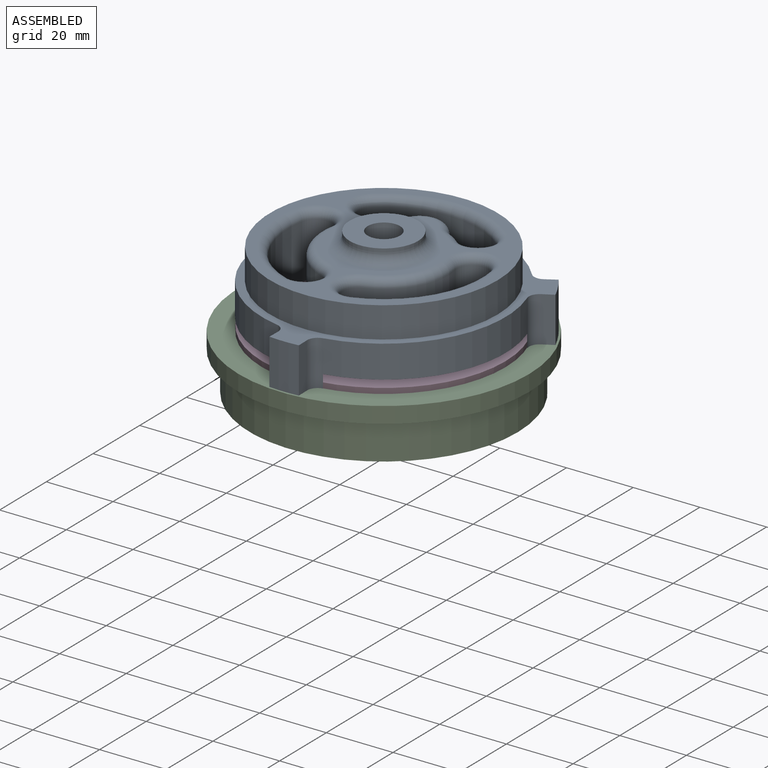
[diagram: assembled view]
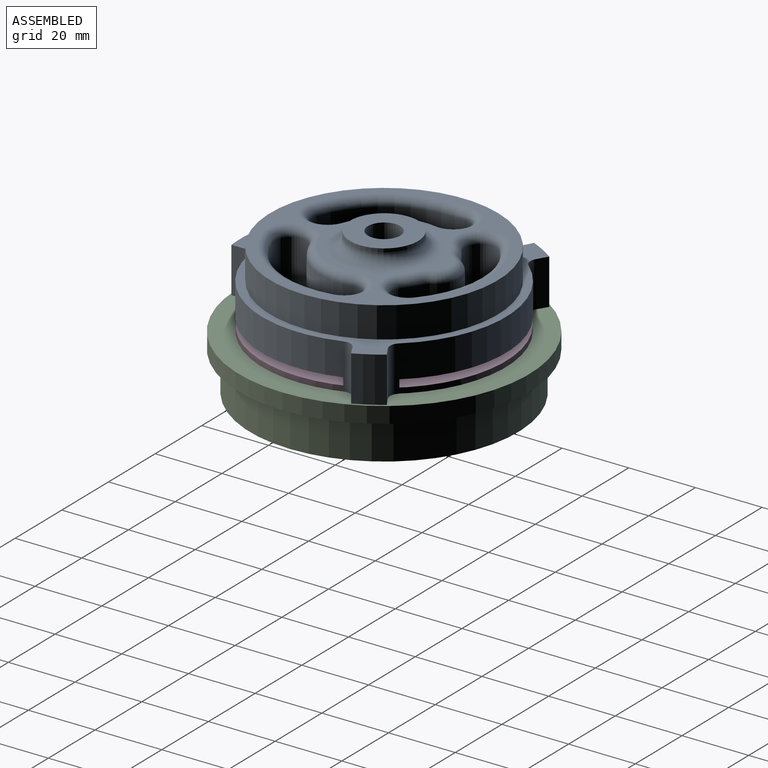
[diagram: assembled view, second angle]
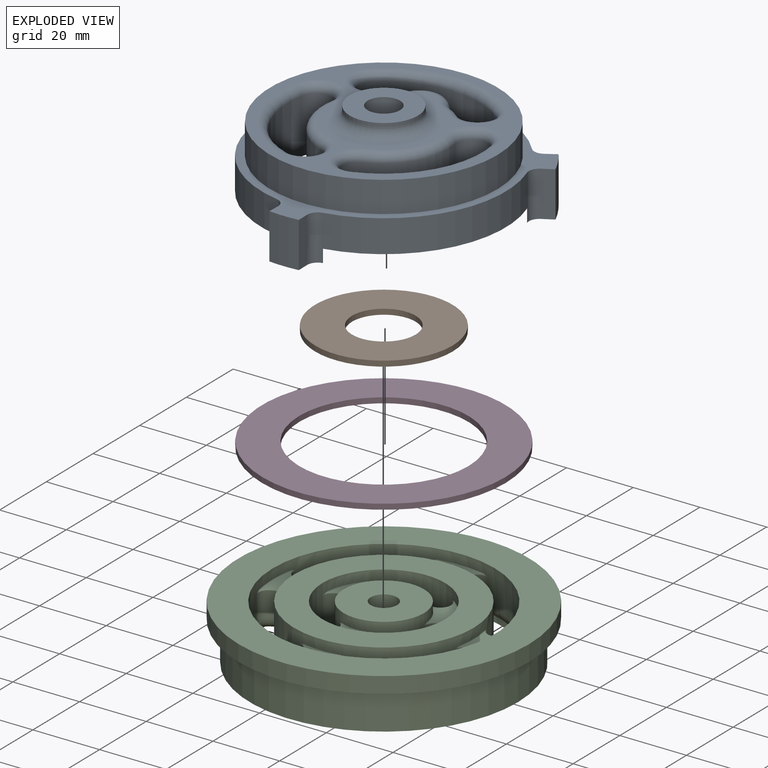
[diagram: exploded view]
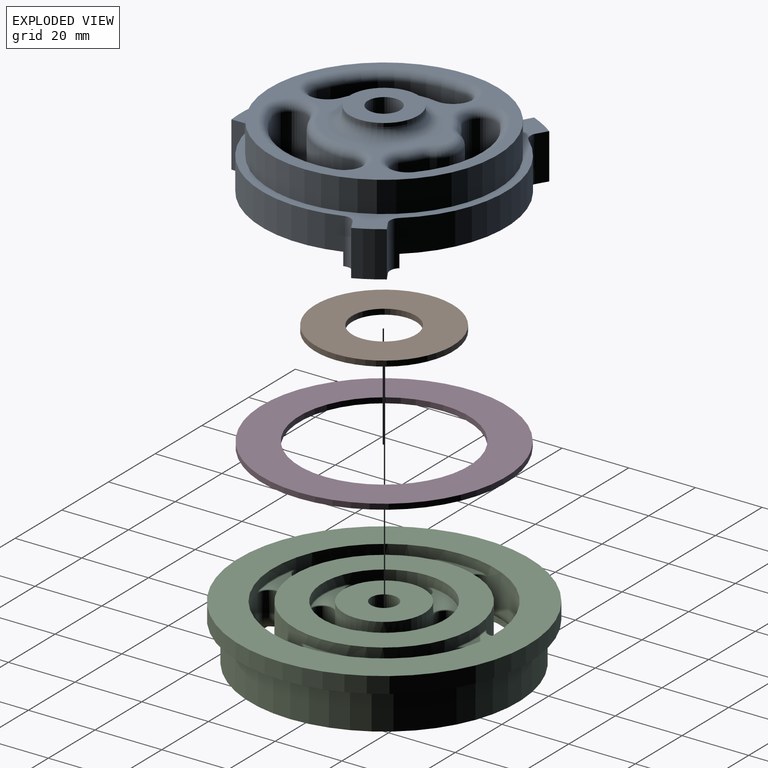
[diagram: exploded view, second angle]
ASSEMBLY  parts=4 mates=3
PART A: 76 faces, bbox 78.4x79.5x28.3 mm
  f0: plane 68.26x68.26mm, normal (0,0,-1), area 1143.3mm2, adj f6,f33,f60,f61,f62,f63,f64,f65
  f1: plane 73.18x73.18mm, normal (0,0,1), area 2478.1mm2, adj f2,f3,f8,f9,f12,f19,f26,f34
  f2: cylinder r=36.59mm len=55.31mm, axis (0,0,1), area 610.1mm2, adj f1,f7,f21,f29
  f3: cylinder r=36.59mm len=47.9mm, axis (0,0,1), area 610.1mm2, adj f1,f7,f14,f22
  f4: plane 20.5x20.5mm, normal (0,0,-1), area 255.9mm2, adj f5,f11
  f5: cylinder r=10.25mm len=20.5mm, axis (0,0,1), area 70.3mm2, adj f4,f33
  f6: cylinder r=34.13mm len=68.26mm, axis (0,0,1), area 1988.2mm2, adj f0,f7
  f7: plane 79.53x78.39mm, normal (0,0,-1), area 721.2mm2, adj f2,f3,f6,f8,f13,f14,f15,f16
  f8: cylinder r=36.59mm len=47.9mm, axis (0,0,1), area 610.1mm2, adj f1,f7,f15,f28
  f9: cylinder r=9.41mm len=18.82mm, axis (0,0,1), area 231.3mm2, adj f1,f10
  f10: plane 18.82x18.82mm, normal (0,0,1), area 204.1mm2, adj f9,f11
  f11: cylinder r=4.86mm len=27.18mm, axis (0,0,-1), area 829.5mm2, adj f4,f10
  f12: cylinder r=36.59mm len=13.83mm, axis (0,0,-1), area 54.1mm2, adj f1,f14,f15,f18
  f13: plane 13.61x3.61mm, normal (-1,-0.02,0), area 49.1mm2, adj f7,f14,f17,f18
  f14: cylinder r=3.17mm len=13.61mm, axis (0,0,-1), area 60.5mm2, adj f3,f7,f12,f13,f18
  f15: cylinder r=3.17mm len=13.61mm, axis (0,0,-1), area 60.5mm2, adj f7,f8,f12,f16,f18
  f16: plane 13.61x3.61mm, normal (1,-0.02,0), area 49.1mm2, adj f7,f15,f17,f18
  f17: cylinder r=42.94mm len=13.61mm, axis (0,0,-1), area 120.2mm2, adj f7,f13,f16,f18
  f18: plane 13.83x7.01mm, normal (0,0,1), area 58.4mm2, adj f12,f13,f14,f15,f16,f17
  f19: cylinder r=36.59mm len=11.98mm, axis (0,0,-1), area 54.1mm2, adj f1,f21,f22,f25
  f20: plane 13.61x3.09mm, normal (0.52,-0.86,0), area 49.1mm2, adj f7,f21,f24,f25
  f21: cylinder r=3.17mm len=13.61mm, axis (0,0,-1), area 60.5mm2, adj f2,f7,f19,f20,f25
  f22: cylinder r=3.17mm len=13.61mm, axis (0,0,-1), area 60.5mm2, adj f3,f7,f19,f23,f25
  f23: plane 13.61x3.16mm, normal (-0.48,0.87,0), area 49.1mm2, adj f7,f22,f24,f25
  f24: cylinder r=42.94mm len=13.61mm, axis (0,0,-1), area 120.2mm2, adj f7,f20,f23,f25
  f25: plane 13.2x11.54mm, normal (0,0,1), area 58.4mm2, adj f19,f20,f21,f22,f23,f24
  f26: cylinder r=36.59mm len=11.98mm, axis (0,0,-1), area 54.1mm2, adj f1,f28,f29,f32
  f27: plane 13.61x3.16mm, normal (0.48,0.87,0), area 49.1mm2, adj f7,f28,f31,f32
  f28: cylinder r=3.17mm len=13.61mm, axis (0,0,-1), area 60.5mm2, adj f7,f8,f26,f27,f32
  f29: cylinder r=3.17mm len=13.61mm, axis (0,0,-1), area 60.5mm2, adj f2,f7,f26,f30,f32
  f30: plane 13.61x3.09mm, normal (-0.52,-0.86,0), area 49.1mm2, adj f7,f29,f31,f32
  f31: cylinder r=42.94mm len=13.61mm, axis (0,0,-1), area 120.2mm2, adj f7,f27,f30,f32
  f32: plane 13.2x11.54mm, normal (0,0,1), area 58.4mm2, adj f26,f27,f28,f29,f30,f31
  f33: torus R=13.42mm, axis (0,0,1), area 357.3mm2, adj f0,f5
  f34: cylinder r=19.05mm len=21.44mm, axis (0,0,-1), area 443.6mm2, adj f1,f35,f36,f69
  f35: cylinder r=4.76mm len=16.46mm, axis (0,0,-1), area 246.3mm2, adj f1,f34,f37,f68
  f36: cylinder r=4.76mm len=16.46mm, axis (0,0,-1), area 246.3mm2, adj f1,f34,f37,f71
  f37: cylinder r=28.57mm len=32.16mm, axis (0,0,-1), area 665.4mm2, adj f1,f35,f36,f70
  f38: cylinder r=19.05mm len=21.44mm, axis (0,0,-1), area 443.6mm2, adj f1,f39,f40,f75
  f39: cylinder r=4.76mm len=16.46mm, axis (0,0,-1), area 246.3mm2, adj f1,f38,f41,f73
  f40: cylinder r=4.76mm len=16.46mm, axis (0,0,-1), area 246.3mm2, adj f1,f38,f41,f74
  f41: cylinder r=28.57mm len=32.16mm, axis (0,0,-1), area 665.4mm2, adj f1,f39,f40,f72
  f42: cylinder r=19.05mm len=16.46mm, axis (0,0,-1), area 79.6mm2, adj f1,f43,f47,f66
  f43: cylinder r=4.76mm len=16.46mm, axis (0,0,-1), area 246.3mm2, adj f1,f42,f44,f64
  f44: cylinder r=28.57mm len=37.14mm, axis (0,0,-1), area 665.4mm2, adj f1,f43,f45,f62
  f45: cylinder r=4.76mm len=16.46mm, axis (0,0,-1), area 246.3mm2, adj f1,f44,f46,f60
  f46: cylinder r=19.05mm len=16.46mm, axis (0,0,-1), area 79.6mm2, adj f1,f45,f48,f61
  f47: cylinder r=4.76mm len=16.46mm, axis (0,0,-1), area 45.7mm2, adj f1,f42,f49,f67
  f48: cylinder r=4.76mm len=16.46mm, axis (0,0,-1), area 45.7mm2, adj f1,f46,f49,f63
  f49: cylinder r=7.36mm len=16.46mm, axis (0,0,-1), area 251.1mm2, adj f1,f47,f48,f65
  f50: cylinder r=4.45mm len=8.89mm, axis (0,0,1), area 133mm2, adj f1,f51
  f51: plane 8.89x8.89mm, normal (0,0,1), area 62.1mm2, adj f50
  f52: cylinder r=4.45mm len=8.89mm, axis (0,0,1), area 133mm2, adj f1,f53
  f53: plane 8.89x8.89mm, normal (0,0,1), area 62.1mm2, adj f52
  f54: cylinder r=4.45mm len=8.89mm, axis (0,0,1), area 133mm2, adj f1,f55
  f55: plane 8.89x8.89mm, normal (0,0,1), area 62.1mm2, adj f54
  f56: cylinder r=4.45mm len=8.89mm, axis (0,0,1), area 133mm2, adj f1,f57
  f57: plane 8.89x8.89mm, normal (0,0,1), area 62.1mm2, adj f56
  f58: cylinder r=4.45mm len=8.89mm, axis (0,0,1), area 133mm2, adj f1,f59
  f59: plane 8.89x8.89mm, normal (0,0,1), area 62.1mm2, adj f58
  f60: torus R=7.3mm, axis (0,0,1), area 71.3mm2, adj f0,f45,f61,f62
  f61: torus R=16.51mm, axis (0,0,1), area 18.4mm2, adj f0,f46,f60,f63
  f62: torus R=31.12mm, axis (0,0,1), area 166.5mm2, adj f0,f44,f60,f64
  f63: torus R=7.3mm, axis (0,0,1), area 13.2mm2, adj f0,f48,f61,f65
  f64: torus R=7.3mm, axis (0,0,1), area 71.3mm2, adj f0,f43,f62,f66
  f65: torus R=4.82mm, axis (0,0,1), area 53.2mm2, adj f0,f49,f63,f67
  f66: torus R=16.51mm, axis (0,0,1), area 18.4mm2, adj f0,f42,f64,f67
  f67: torus R=7.3mm, axis (0,0,1), area 13.2mm2, adj f0,f47,f65,f66
  f68: torus R=7.3mm, axis (0,0,1), area 71.3mm2, adj f0,f35,f69,f70
  f69: torus R=16.51mm, axis (0,0,1), area 102.3mm2, adj f0,f34,f68,f71
  f70: torus R=31.12mm, axis (0,0,1), area 166.5mm2, adj f0,f37,f68,f71
  f71: torus R=7.3mm, axis (0,0,1), area 71.3mm2, adj f0,f36,f69,f70
  f72: torus R=31.12mm, axis (0,0,1), area 166.5mm2, adj f0,f41,f73,f74
  f73: torus R=7.3mm, axis (0,0,1), area 71.3mm2, adj f0,f39,f72,f75
  f74: torus R=7.3mm, axis (0,0,1), area 71.3mm2, adj f0,f40,f72,f75
  f75: torus R=16.51mm, axis (0,0,1), area 102.3mm2, adj f0,f38,f73,f74
PART B: 4 faces, bbox 41.3x41.3x1.6 mm
  f0: cylinder r=9.55mm len=19.1mm, axis (0,0,-1), area 97.5mm2, adj f2,f3
  f1: cylinder r=20.64mm len=41.28mm, axis (0,0,-1), area 210.8mm2, adj f2,f3
  f2: plane 41.28x41.28mm, normal (0,0,1), area 1051.5mm2, adj f0,f1
  f3: plane 41.28x41.28mm, normal (0,0,-1), area 1051.5mm2, adj f0,f1
PART C: 129 faces, bbox 87.1x87.1x16.6 mm
  f0: plane 87.12x87.12mm, normal (0,0,1), area 2472.5mm2, adj f20,f29
  f1: plane 53.95x53.95mm, normal (0,0,1), area 1220.6mm2, adj f26,f28
  f2: cylinder r=3.17mm len=7.55mm, axis (0,0,-1), area 73.4mm2, adj f28,f29,f56,f58,f121
  f3: cylinder r=3.17mm len=7.55mm, axis (0,0,-1), area 73.4mm2, adj f28,f29,f57,f59,f104
  f4: cylinder r=3.17mm len=7.34mm, axis (0,0,-1), area 73.2mm2, adj f26,f27,f52,f89
  f5: cylinder r=3.17mm len=7.34mm, axis (0,0,-1), area 73.2mm2, adj f26,f27,f53,f80
  f6: cylinder r=3.17mm len=7.34mm, axis (0,0,-1), area 73.2mm2, adj f26,f27,f49,f96
  f7: cylinder r=3.17mm len=7.34mm, axis (0,0,-1), area 73.2mm2, adj f26,f27,f48,f81
  f8: cylinder r=3.17mm len=7.55mm, axis (0,0,-1), area 73.4mm2, adj f28,f29,f42,f44,f97
  f9: cylinder r=3.17mm len=7.55mm, axis (0,0,-1), area 73.4mm2, adj f28,f29,f43,f45,f110
  f10: cylinder r=3.17mm len=7.55mm, axis (0,0,-1), area 73.4mm2, adj f28,f29,f67,f68,f118
  f11: cylinder r=3.17mm len=7.55mm, axis (0,0,-1), area 73.4mm2, adj f28,f29,f71,f72,f107
  f12: cylinder r=3.17mm len=7.34mm, axis (0,0,-1), area 73.2mm2, adj f26,f27,f40,f88
  f13: cylinder r=3.17mm len=7.34mm, axis (0,0,-1), area 73.2mm2, adj f26,f27,f37,f73
  f14: cylinder r=3.17mm len=7.55mm, axis (0,0,-1), area 73.4mm2, adj f28,f29,f65,f66,f115
  f15: cylinder r=3.17mm len=7.55mm, axis (0,0,-1), area 73.4mm2, adj f28,f29,f61,f62,f128
  f16: plane 15.05x15.05mm, normal (0,0,-1), area 128.5mm2, adj f22,f23
  f17: plane 80.44x80.44mm, normal (0,0,-1), area 1033.6mm2, adj f18,f24
  f18: cylinder r=40.22mm len=80.44mm, axis (0,0,1), area 2972mm2, adj f17,f19
  f19: plane 87.12x87.12mm, normal (0,0,-1), area 879.1mm2, adj f18,f20
  f20: cylinder r=43.56mm len=87.12mm, axis (0,0,1), area 1327.8mm2, adj f0,f19
  f21: plane 24.13x24.13mm, normal (0,0,1), area 407.8mm2, adj f22,f27
  f22: cylinder r=3.97mm len=16.61mm, axis (0,0,-1), area 414.2mm2, adj f16,f21
  f23: cylinder r=7.53mm len=15.05mm, axis (0,0,-1), area 96.1mm2, adj f16,f25
  f24: cylinder r=35.9mm len=71.8mm, axis (0,0,-1), area 458.3mm2, adj f17,f25,f41,f42,f43,f55,f56,f57
  f25: plane 71.8x71.8mm, normal (0,0,-1), area 564mm2, adj f23,f24,f37,f38,f39,f40,f44,f45
  f26: cylinder r=18.41mm len=36.83mm, axis (0,0,-1), area 795.1mm2, adj f1,f4,f5,f6,f7,f12,f13,f38
  f27: cylinder r=12.06mm len=24.13mm, axis (0,0,-1), area 521.3mm2, adj f4,f5,f6,f7,f12,f13,f21,f39
  f28: cylinder r=26.97mm len=53.95mm, axis (0,0,-1), area 1396mm2, adj f1,f2,f3,f8,f9,f10,f11,f14
  f29: cylinder r=33.32mm len=66.65mm, axis (0,0,-1), area 1753.3mm2, adj f0,f2,f3,f8,f9,f10,f11,f14
  f30: plane 13.05x6.35mm, normal (0,0,1), area 55.5mm2, adj f121,f124,f125,f128
  f31: plane 13.05x6.35mm, normal (0,0,1), area 55.5mm2, adj f114,f115,f118,f119
  f32: plane 13.05x10.55mm, normal (0,0,1), area 58.8mm2, adj f73,f76,f77,f80
  f33: plane 13.05x10.55mm, normal (0,0,1), area 58.8mm2, adj f81,f84,f85,f88
  f34: plane 13.05x6.35mm, normal (0,0,1), area 55.5mm2, adj f106,f107,f110,f111
  f35: plane 13.05x6.35mm, normal (0,0,1), area 55.5mm2, adj f97,f100,f101,f104
  f36: plane 14.66x6.78mm, normal (0,0,1), area 58.8mm2, adj f89,f92,f93,f96
  f37: torus R=6.99mm, axis (0,0,-1), area 85.7mm2, adj f13,f25,f38,f39
  f38: torus R=22.23mm, axis (0,0,-1), area 124.1mm2, adj f25,f26,f37,f40
  f39: torus R=8.26mm, axis (0,0,-1), area 66.9mm2, adj f25,f27,f37,f40
  f40: torus R=6.99mm, axis (0,0,-1), area 85.7mm2, adj f12,f25,f38,f39
  f41: torus R=37.13mm, axis (0,0,-1), area 171.4mm2, adj f24,f29,f42,f43
  f42: bspline ~5.64x3.96mm, area 14.5mm2, adj f8,f24,f41,f44
  f43: bspline ~5.64x3.96mm, area 14.5mm2, adj f9,f24,f41,f45
  f44: torus R=6.99mm, axis (0,0,-1), area 67.5mm2, adj f8,f25,f42,f46
  f45: torus R=6.99mm, axis (0,0,-1), area 67.5mm2, adj f9,f25,f43,f46
  f46: torus R=23.16mm, axis (0,0,-1), area 162.3mm2, adj f25,f28,f44,f45
  f47: torus R=22.23mm, axis (0,0,-1), area 124.1mm2, adj f25,f26,f48,f49
  f48: torus R=6.99mm, axis (0,0,-1), area 85.7mm2, adj f7,f25,f47,f50
  f49: torus R=6.99mm, axis (0,0,-1), area 85.7mm2, adj f6,f25,f47,f50
  f50: torus R=8.26mm, axis (0,0,-1), area 66.9mm2, adj f25,f27,f48,f49
  f51: torus R=22.23mm, axis (0,0,-1), area 124.1mm2, adj f25,f26,f52,f53
  f52: torus R=6.99mm, axis (0,0,-1), area 85.7mm2, adj f4,f25,f51,f54
  f53: torus R=6.99mm, axis (0,0,-1), area 85.7mm2, adj f5,f25,f51,f54
  f54: torus R=8.26mm, axis (0,0,-1), area 66.9mm2, adj f25,f27,f52,f53
  f55: torus R=37.13mm, axis (0,0,-1), area 171.4mm2, adj f24,f29,f56,f57
  f56: bspline ~5.64x3.96mm, area 14.5mm2, adj f2,f24,f55,f58
  f57: bspline ~5.64x3.96mm, area 14.5mm2, adj f3,f24,f55,f59
  f58: torus R=6.99mm, axis (0,0,-1), area 67.5mm2, adj f2,f25,f56,f60
  f59: torus R=6.99mm, axis (0,0,-1), area 67.5mm2, adj f3,f25,f57,f60
  f60: torus R=23.16mm, axis (0,0,-1), area 162.3mm2, adj f25,f28,f58,f59
  f61: bspline ~5.64x3.96mm, area 14.5mm2, adj f15,f24,f62,f63
  f62: torus R=6.99mm, axis (0,0,-1), area 67.5mm2, adj f15,f25,f61,f64
  f63: torus R=37.13mm, axis (0,0,-1), area 171.4mm2, adj f24,f29,f61,f65
  f64: torus R=23.16mm, axis (0,0,-1), area 162.3mm2, adj f25,f28,f62,f66
  f65: bspline ~5.64x3.96mm, area 14.5mm2, adj f14,f24,f63,f66
  f66: torus R=6.99mm, axis (0,0,-1), area 67.5mm2, adj f14,f25,f64,f65
  f67: bspline ~5.64x3.96mm, area 14.5mm2, adj f10,f24,f68,f69
  f68: torus R=6.99mm, axis (0,0,-1), area 67.5mm2, adj f10,f25,f67,f70
  f69: torus R=37.13mm, axis (0,0,-1), area 171.4mm2, adj f24,f29,f67,f71
  f70: torus R=23.16mm, axis (0,0,-1), area 162.3mm2, adj f25,f28,f68,f72
  f71: bspline ~5.64x3.96mm, area 14.5mm2, adj f11,f24,f69,f72
  f72: torus R=6.99mm, axis (0,0,-1), area 67.5mm2, adj f11,f25,f70,f71
  f73: torus R=3.43mm, axis (0,0,1), area 3.4mm2, adj f13,f32,f74,f75
  f74: bspline ~1.67x1.29mm, area 0.3mm2, adj f26,f73,f76
  f75: bspline ~1.52x0.92mm, area 0.2mm2, adj f27,f73,f77
  f76: torus R=18.16mm, axis (0,0,1), area 6.1mm2, adj f26,f32,f74,f78
  f77: torus R=12.32mm, axis (0,0,1), area 3.8mm2, adj f27,f32,f75,f79
  f78: bspline ~2.03x0.51mm, area 0.3mm2, adj f26,f76,f80
  f79: bspline ~1.66x0.51mm, area 0.2mm2, adj f27,f77,f80
  f80: torus R=3.43mm, axis (0,0,1), area 3.4mm2, adj f5,f32,f78,f79
  f81: torus R=3.43mm, axis (0,0,1), area 3.4mm2, adj f7,f33,f82,f83
  f82: bspline ~2.03x0.51mm, area 0.3mm2, adj f26,f81,f84
  f83: bspline ~1.66x0.51mm, area 0.2mm2, adj f27,f81,f85
  f84: torus R=18.16mm, axis (0,0,1), area 6.1mm2, adj f26,f33,f82,f86
  f85: torus R=12.32mm, axis (0,0,1), area 3.8mm2, adj f27,f33,f83,f87
  f86: bspline ~1.7x1.32mm, area 0.3mm2, adj f26,f84,f88
  f87: bspline ~1.52x0.92mm, area 0.2mm2, adj f27,f85,f88
  f88: torus R=3.43mm, axis (0,0,1), area 3.4mm2, adj f12,f33,f86,f87
  f89: torus R=3.43mm, axis (0,0,1), area 3.4mm2, adj f4,f36,f90,f91
  f90: bspline ~1.88x0.9mm, area 0.3mm2, adj f26,f89,f92
  f91: bspline ~1.47x0.97mm, area 0.2mm2, adj f27,f89,f93
  f92: torus R=18.16mm, axis (0,0,1), area 6.1mm2, adj f26,f36,f90,f94
  f93: torus R=12.32mm, axis (0,0,1), area 3.8mm2, adj f27,f36,f91,f95
  f94: bspline ~1.88x0.9mm, area 0.3mm2, adj f26,f92,f96
  f95: bspline ~1.47x0.97mm, area 0.2mm2, adj f27,f93,f96
  f96: torus R=3.43mm, axis (0,0,1), area 3.4mm2, adj f6,f36,f94,f95
  f97: torus R=3.43mm, axis (0,0,1), area 3.4mm2, adj f8,f35,f98,f99
  f98: bspline ~1.96x0.51mm, area 0.3mm2, adj f29,f97,f100
  f99: bspline ~1.91x0.73mm, area 0.2mm2, adj f28,f97,f101
  f100: torus R=33.07mm, axis (0,0,1), area 5.3mm2, adj f29,f35,f98,f102
  f101: torus R=27.23mm, axis (0,0,1), area 4.2mm2, adj f28,f35,f99,f103
  f102: bspline ~1.9x0.51mm, area 0.3mm2, adj f29,f100,f104
  f103: bspline ~1.91x0.73mm, area 0.2mm2, adj f28,f101,f104
  f104: torus R=3.43mm, axis (0,0,1), area 3.4mm2, adj f3,f35,f102,f103
  f105: bspline ~1.96x0.51mm, area 0.3mm2, adj f29,f106,f107
  f106: torus R=33.07mm, axis (0,0,1), area 5.3mm2, adj f29,f34,f105,f108
  f107: torus R=3.43mm, axis (0,0,1), area 3.4mm2, adj f11,f34,f105,f109
  f108: bspline ~1.9x0.51mm, area 0.3mm2, adj f29,f106,f110
  f109: bspline ~1.91x0.73mm, area 0.2mm2, adj f28,f107,f111
  f110: torus R=3.43mm, axis (0,0,1), area 3.4mm2, adj f9,f34,f108,f112
  f111: torus R=27.23mm, axis (0,0,1), area 4.2mm2, adj f28,f34,f109,f112
  f112: bspline ~1.91x0.73mm, area 0.2mm2, adj f28,f110,f111
  f113: bspline ~1.91x0.73mm, area 0.2mm2, adj f28,f114,f115
  f114: torus R=27.23mm, axis (0,0,1), area 4.2mm2, adj f28,f31,f113,f116
  f115: torus R=3.43mm, axis (0,0,1), area 3.4mm2, adj f14,f31,f113,f117
  f116: bspline ~1.91x0.73mm, area 0.2mm2, adj f28,f114,f118
  f117: bspline ~1.96x0.51mm, area 0.3mm2, adj f29,f115,f119
  f118: torus R=3.43mm, axis (0,0,1), area 3.4mm2, adj f10,f31,f116,f120
  f119: torus R=33.07mm, axis (0,0,1), area 5.3mm2, adj f29,f31,f117,f120
  f120: bspline ~1.9x0.51mm, area 0.3mm2, adj f29,f118,f119
  f121: torus R=3.43mm, axis (0,0,1), area 3.4mm2, adj f2,f30,f122,f123
  f122: bspline ~1.96x0.51mm, area 0.3mm2, adj f29,f121,f124
  f123: bspline ~1.91x0.73mm, area 0.2mm2, adj f28,f121,f125
  f124: torus R=33.07mm, axis (0,0,1), area 5.3mm2, adj f29,f30,f122,f126
  f125: torus R=27.23mm, axis (0,0,1), area 4.2mm2, adj f28,f30,f123,f127
  f126: bspline ~1.9x0.51mm, area 0.3mm2, adj f29,f124,f128
  f127: bspline ~1.91x0.73mm, area 0.2mm2, adj f28,f125,f128
  f128: torus R=3.43mm, axis (0,0,1), area 3.4mm2, adj f15,f30,f126,f127
PART D: 4 faces, bbox 73x73x1.6 mm
  f0: cylinder r=25.4mm len=50.8mm, axis (0,0,-1), area 259.4mm2, adj f2,f3
  f1: cylinder r=36.51mm len=73.03mm, axis (0,0,-1), area 372.9mm2, adj f2,f3
  f2: plane 73.03x73.03mm, normal (0,0,1), area 2161.4mm2, adj f0,f1
  f3: plane 73.03x73.03mm, normal (0,0,-1), area 2161.4mm2, adj f0,f1
PLACE A rot(axis=(1,0,0),180deg) t=(10.59,-21.91,40.35)mm
PLACE B rot(axis=(1,0,0),180deg) t=(10.59,-21.91,14.8)mm
PLACE C t=(10.59,-21.91,-3.44)mm
PLACE D rot(axis=(1,0,0),180deg) t=(10.59,-21.91,14.8)mm
MATE fastened D.f0 <-> C.f18  axis (0,0,1) through (10.59,-21.91,13.17)mm
MATE revolute A.f2 <-> B.f1  axis (0,0,-1) through (10.59,-21.91,13.17)mm
MATE fastened B.f1 <-> C.f18  axis (0,0,1) through (10.59,-21.91,13.17)mm
